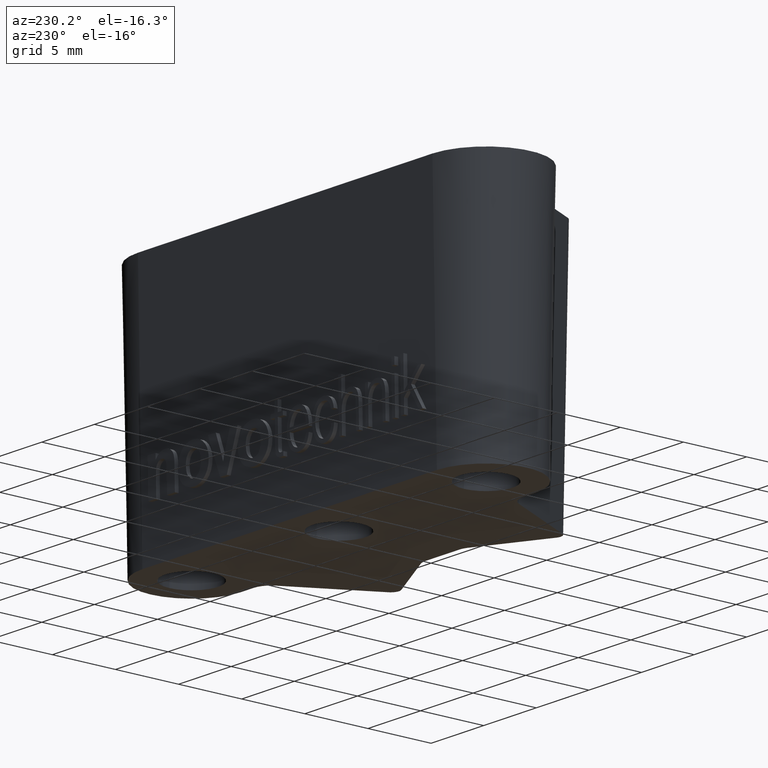
[diagram: clean part render]
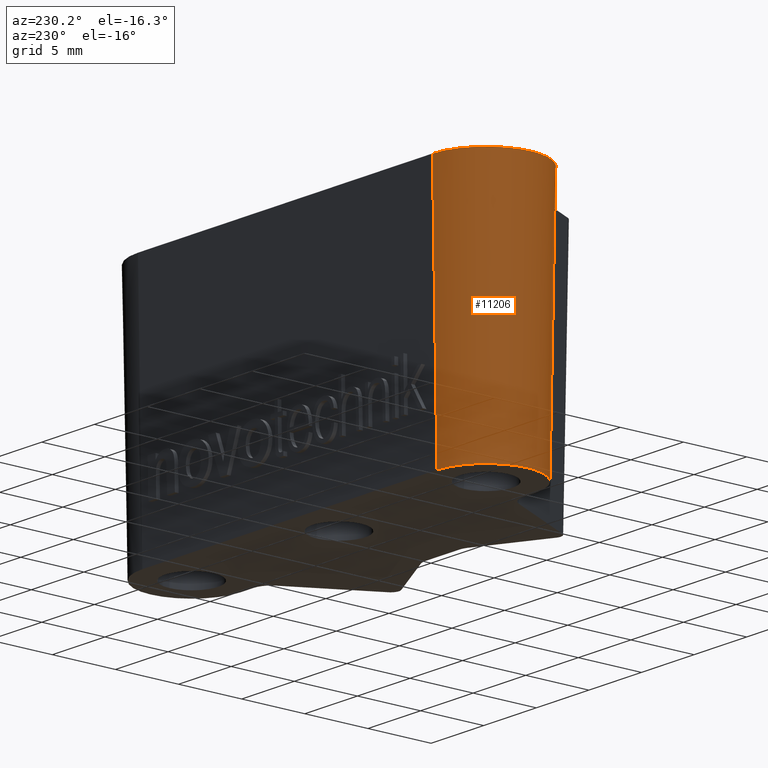
[diagram: same view with one face highlighted and labeled with its STEP entity id]
A machine part, auxiliary view. The second image highlights one B-rep face of the part: STEP entity #11206.
In plain terms, the highlighted conical surface has half-angle 1 deg.
Its self-contained STEP definition (entity closure, byte-faithful):
#1604 = CARTESIAN_POINT ( 'NONE',  ( -14.00000000000000000, 28.39910129856435000, 0.0000000000000000000 ) ) ;
#1744 = DIRECTION ( 'NONE',  ( 1.000000000000000000, 0.0000000000000000000, 5.916456789157589400E-031 ) ) ;
#1745 = DIRECTION ( 'NONE',  ( 5.916456789157588500E-031, 5.146084811402694200E-031, 1.000000000000000000 ) ) ;
#1746 = CARTESIAN_POINT ( 'NONE',  ( -14.00000000000000000, 32.29999999999999700, 0.0000000000000000000 ) ) ;
#1747 = AXIS2_PLACEMENT_3D ( 'NONE', #1746, #1745, #1744 ) ;
#1748 = CIRCLE ( 'NONE', #1747, 3.900898701435650700 ) ;
#2180 = CIRCLE ( 'NONE', #2244, 4.250000000000003600 ) ;
#2240 = CARTESIAN_POINT ( 'NONE',  ( -14.00000000000000000, 28.04999999999999000, 20.00000000000001800 ) ) ;
#2241 = DIRECTION ( 'NONE',  ( 1.000000000000000000, 0.0000000000000000000, 0.0000000000000000000 ) ) ;
#2242 = DIRECTION ( 'NONE',  ( 5.916456789157588500E-031, 5.146084811402694200E-031, 1.000000000000000000 ) ) ;
#2243 = CARTESIAN_POINT ( 'NONE',  ( -14.00000000000000000, 32.29999999999999700, 20.00000000000001800 ) ) ;
#2244 = AXIS2_PLACEMENT_3D ( 'NONE', #2243, #2242, #2241 ) ;
#3305 = CARTESIAN_POINT ( 'NONE',  ( -14.00000000000000400, 36.54999999999999700, 20.00000000000001800 ) ) ;
#3376 = DIRECTION ( 'NONE',  ( -5.916456789157589400E-031, -0.01745240643728355000, -0.9998476951563911600 ) ) ;
#3377 = VECTOR ( 'NONE', #3376, 1000.000000000000200 ) ;
#3378 = CARTESIAN_POINT ( 'NONE',  ( -14.00000000000000400, 36.54999999999999700, 20.00000000000001800 ) ) ;
#3379 = LINE ( 'NONE', #3378, #3377 ) ;
#3393 = CARTESIAN_POINT ( 'NONE',  ( -14.00000000000000400, 36.20089870143564100, 0.0000000000000000000 ) ) ;
#4537 = DIRECTION ( 'NONE',  ( -3.270562268189277900E-017, 0.01745240643728355000, -0.9998476951563911600 ) ) ;
#4538 = VECTOR ( 'NONE', #4537, 1000.000000000000200 ) ;
#4539 = CARTESIAN_POINT ( 'NONE',  ( -14.00000000000000000, 28.04999999999999000, 20.00000000000001800 ) ) ;
#4540 = LINE ( 'NONE', #4539, #4538 ) ;
#4759 = DIRECTION ( 'NONE',  ( 1.000000000000000000, 0.0000000000000000000, 0.0000000000000000000 ) ) ;
#4760 = DIRECTION ( 'NONE',  ( 5.916456789157588500E-031, 5.146084811402694200E-031, 1.000000000000000000 ) ) ;
#4761 = AXIS2_PLACEMENT_3D ( 'NONE', #4765, #4760, #4759 ) ;
#4762 = CONICAL_SURFACE ( 'NONE', #4761, 4.250000000000003600, 0.01745329251994333400 ) ;
#4765 = CARTESIAN_POINT ( 'NONE',  ( -14.00000000000000000, 32.29999999999999700, 20.00000000000001800 ) ) ;
#4791 = FACE_OUTER_BOUND ( 'NONE', #11146, .T. ) ;
#9579 = EDGE_CURVE ( 'NONE', #9637, #9653, #3379, .T. ) ;
#9637 = VERTEX_POINT ( 'NONE', #3305 ) ;
#9653 = VERTEX_POINT ( 'NONE', #3393 ) ;
#11146 = EDGE_LOOP ( 'NONE', ( #11207, #11180, #11173, #11200 ) ) ;
#11173 = ORIENTED_EDGE ( 'NONE', *, *, #13486, .F. ) ;
#11180 = ORIENTED_EDGE ( 'NONE', *, *, #11181, .F. ) ;
#11181 = EDGE_CURVE ( 'NONE', #13487, #13230, #4540, .T. ) ;
#11200 = ORIENTED_EDGE ( 'NONE', *, *, #9579, .T. ) ;
#11206 = ADVANCED_FACE ( 'NONE', ( #4791 ), #4762, .T. ) ;
#11207 = ORIENTED_EDGE ( 'NONE', *, *, #13293, .T. ) ;
#13230 = VERTEX_POINT ( 'NONE', #1604 ) ;
#13293 = EDGE_CURVE ( 'NONE', #9653, #13230, #1748, .T. ) ;
#13486 = EDGE_CURVE ( 'NONE', #9637, #13487, #2180, .T. ) ;
#13487 = VERTEX_POINT ( 'NONE', #2240 ) ;